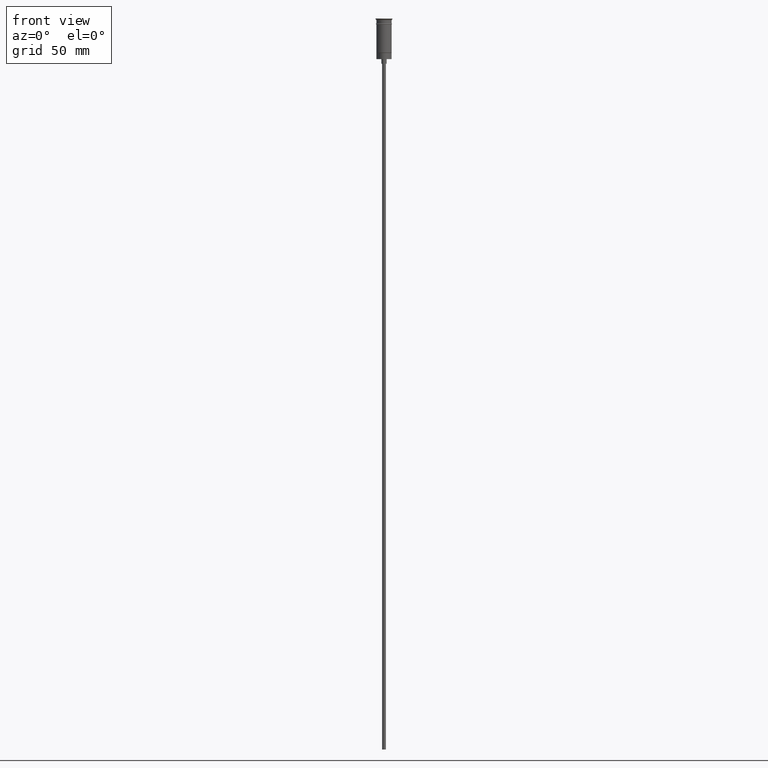
[diagram: clean part render]
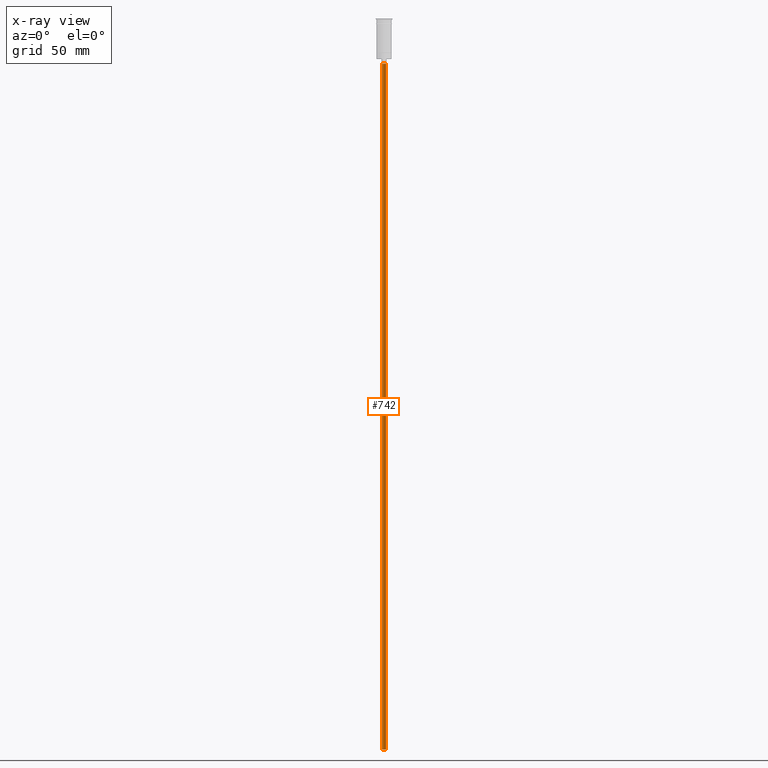
[diagram: x-ray — body ghosted, one internal face saturated and labeled with its STEP entity id]
A machine part, front view, then the same camera in x-ray: the body is ghosted and one INTERNAL B-rep face — a face not visible from any outside direction — is saturated and labeled: STEP entity #742.
In plain terms, the highlighted cylindrical surface (edge-blend (fillet) strip) has radius 1.25 mm, axis along (-0, -0, 1).
Its self-contained STEP definition (entity closure, byte-faithful):
#26 = VECTOR ( 'NONE', #1151, 1000.000000000000000 ) ;
#27 = CIRCLE ( 'NONE', #1579, 1.250000000000000000 ) ;
#63 = CARTESIAN_POINT ( 'NONE',  ( 1.250000000000000000, 0.000000000000000000, -476.5000000000000568 ) ) ;
#81 = CARTESIAN_POINT ( 'NONE',  ( 0.000000000000000000, 0.000000000000000000, -476.5000000000000568 ) ) ;
#120 = FACE_OUTER_BOUND ( 'NONE', #163, .T. ) ;
#154 = CARTESIAN_POINT ( 'NONE',  ( 1.250000000000000000, 0.000000000000000000, -476.5000000000000568 ) ) ;
#163 = EDGE_LOOP ( 'NONE', ( #281, #1336, #409, #373 ) ) ;
#167 = EDGE_CURVE ( 'NONE', #1105, #891, #577, .T. ) ;
#281 = ORIENTED_EDGE ( 'NONE', *, *, #591, .F. ) ;
#327 = EDGE_CURVE ( 'NONE', #891, #1212, #515, .T. ) ;
#373 = ORIENTED_EDGE ( 'NONE', *, *, #401, .F. ) ;
#401 = EDGE_CURVE ( 'NONE', #866, #1212, #1240, .T. ) ;
#409 = ORIENTED_EDGE ( 'NONE', *, *, #327, .T. ) ;
#410 = DIRECTION ( 'NONE',  ( -1.000000000000000000, 0.000000000000000000, 0.000000000000000000 ) ) ;
#421 = DIRECTION ( 'NONE',  ( 0.000000000000000000, 0.000000000000000000, -1.000000000000000000 ) ) ;
#457 = CARTESIAN_POINT ( 'NONE',  ( 0.000000000000000000, 0.000000000000000000, -476.5000000000000568 ) ) ;
#515 = CIRCLE ( 'NONE', #626, 1.250000000000000000 ) ;
#577 = LINE ( 'NONE', #1316, #1601 ) ;
#591 = EDGE_CURVE ( 'NONE', #1105, #866, #27, .T. ) ;
#626 = AXIS2_PLACEMENT_3D ( 'NONE', #722, #967, #851 ) ;
#722 = CARTESIAN_POINT ( 'NONE',  ( 0.000000000000000000, 0.000000000000000000, -29.50000000000000000 ) ) ;
#742 = ADVANCED_FACE ( 'NONE', ( #120 ), #1591, .T. ) ;
#835 = DIRECTION ( 'NONE',  ( 1.000000000000000000, 0.000000000000000000, 0.000000000000000000 ) ) ;
#851 = DIRECTION ( 'NONE',  ( -1.000000000000000000, 0.000000000000000000, 0.000000000000000000 ) ) ;
#866 = VERTEX_POINT ( 'NONE', #63 ) ;
#891 = VERTEX_POINT ( 'NONE', #1419 ) ;
#948 = DIRECTION ( 'NONE',  ( -0.000000000000000000, -0.000000000000000000, 1.000000000000000000 ) ) ;
#967 = DIRECTION ( 'NONE',  ( 0.000000000000000000, 0.000000000000000000, -1.000000000000000000 ) ) ;
#997 = CARTESIAN_POINT ( 'NONE',  ( 1.250000000000000000, 0.000000000000000000, -29.50000000000000000 ) ) ;
#1105 = VERTEX_POINT ( 'NONE', #1340 ) ;
#1151 = DIRECTION ( 'NONE',  ( -0.000000000000000000, -0.000000000000000000, 1.000000000000000000 ) ) ;
#1212 = VERTEX_POINT ( 'NONE', #997 ) ;
#1240 = LINE ( 'NONE', #154, #26 ) ;
#1271 = AXIS2_PLACEMENT_3D ( 'NONE', #457, #948, #835 ) ;
#1290 = DIRECTION ( 'NONE',  ( -0.000000000000000000, -0.000000000000000000, 1.000000000000000000 ) ) ;
#1316 = CARTESIAN_POINT ( 'NONE',  ( -1.250000000000000000, 1.530808498934191571E-16, -476.5000000000000568 ) ) ;
#1336 = ORIENTED_EDGE ( 'NONE', *, *, #167, .T. ) ;
#1340 = CARTESIAN_POINT ( 'NONE',  ( -1.250000000000000000, 1.530808498934191571E-16, -476.5000000000000568 ) ) ;
#1419 = CARTESIAN_POINT ( 'NONE',  ( -1.250000000000000000, 1.530808498934191571E-16, -29.50000000000000000 ) ) ;
#1579 = AXIS2_PLACEMENT_3D ( 'NONE', #81, #421, #410 ) ;
#1591 = CYLINDRICAL_SURFACE ( 'NONE', #1271, 1.250000000000000000 ) ;
#1601 = VECTOR ( 'NONE', #1290, 1000.000000000000000 ) ;